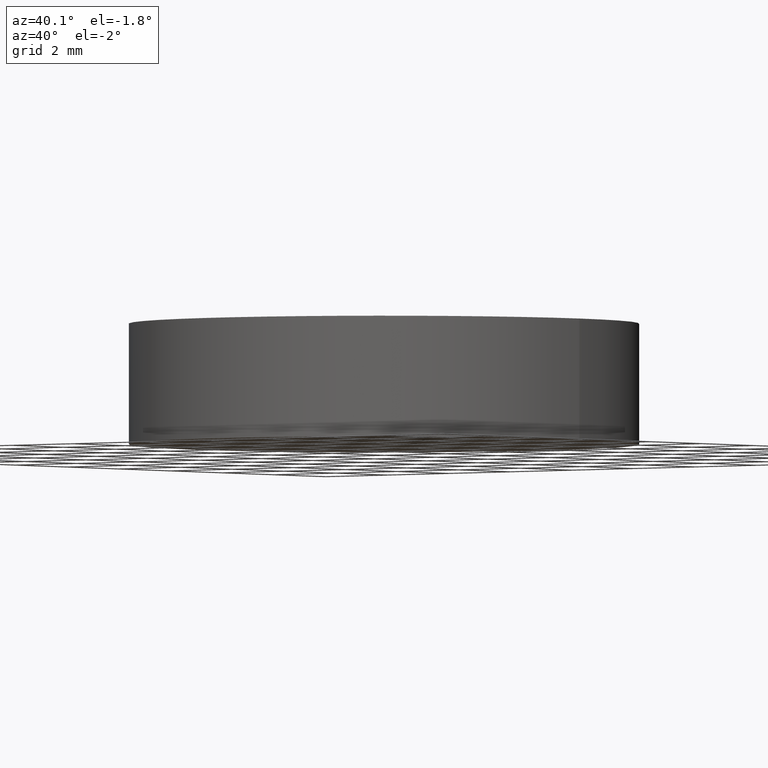
[diagram: clean part render]
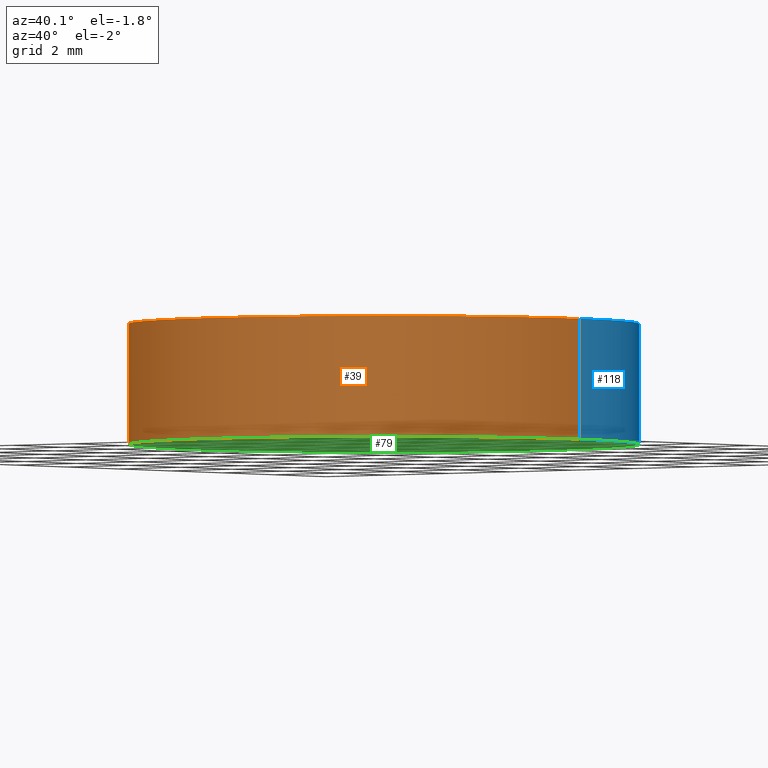
[diagram: same view with three faces highlighted in distinct colors, each labeled with its STEP entity id]
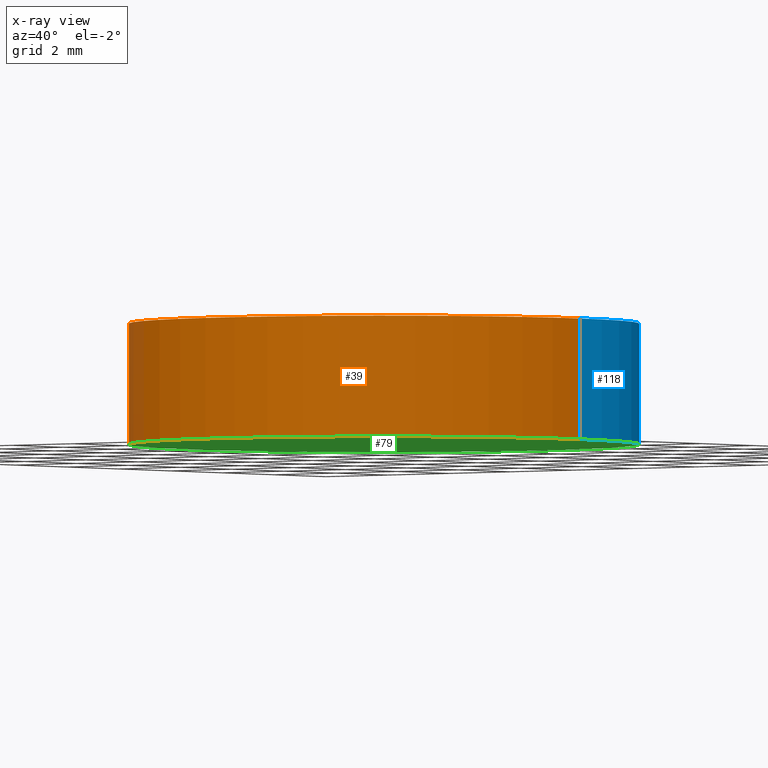
[diagram: x-ray of the same camera — body ghosted, the three highlighted faces saturated]
A machine part, auxiliary view with three faces highlighted in distinct colors.
The next image is the same camera in x-ray (body ghosted, the three faces saturated) — at least one of them is partly hidden behind the body in this view.
Their STEP definitions:

[orange] entity #39 — the highlighted cylindrical surface (partial cylindrical patch) has radius 6.35 mm, axis along (-0, -0, -1).
#1 = ORIENTED_EDGE ( 'NONE', *, *, #22, .T. ) ;
#5 = VECTOR ( 'NONE', #101, 1000.000000000000000 ) ;
#16 = AXIS2_PLACEMENT_3D ( 'NONE', #116, #124, #36 ) ;
#21 = DIRECTION ( 'NONE',  ( 1.000000000000000000, 0.0000000000000000000, 0.0000000000000000000 ) ) ;
#22 = EDGE_CURVE ( 'NONE', #117, #88, #98, .T. ) ;
#26 = CYLINDRICAL_SURFACE ( 'NONE', #16, 6.349999999999999600 ) ;
#27 = EDGE_LOOP ( 'NONE', ( #123, #58, #127, #1 ) ) ;
#30 = CARTESIAN_POINT ( 'NONE',  ( 6.349999999999999600, 7.776507174585692200E-016, 3.000000000000000000 ) ) ;
#31 = VERTEX_POINT ( 'NONE', #134 ) ;
#32 = DIRECTION ( 'NONE',  ( -0.0000000000000000000, -0.0000000000000000000, -1.000000000000000000 ) ) ;
#33 = CARTESIAN_POINT ( 'NONE',  ( -6.349999999999999600, 0.0000000000000000000, 0.0000000000000000000 ) ) ;
#36 = DIRECTION ( 'NONE',  ( -1.000000000000000000, 0.0000000000000000000, 0.0000000000000000000 ) ) ;
#39 = ADVANCED_FACE ( 'NONE', ( #112 ), #26, .T. ) ;
#42 = CARTESIAN_POINT ( 'NONE',  ( -6.349999999999999600, 0.0000000000000000000, 3.000000000000000000 ) ) ;
#43 = DIRECTION ( 'NONE',  ( 1.000000000000000000, 0.0000000000000000000, 0.0000000000000000000 ) ) ;
#46 = DIRECTION ( 'NONE',  ( 0.0000000000000000000, 0.0000000000000000000, 1.000000000000000000 ) ) ;
#58 = ORIENTED_EDGE ( 'NONE', *, *, #99, .F. ) ;
#59 = CARTESIAN_POINT ( 'NONE',  ( 0.0000000000000000000, 0.0000000000000000000, 0.0000000000000000000 ) ) ;
#66 = EDGE_CURVE ( 'NONE', #97, #88, #80, .T. ) ;
#71 = CARTESIAN_POINT ( 'NONE',  ( 6.349999999999999600, 7.776507174585692200E-016, 0.0000000000000000000 ) ) ;
#80 = LINE ( 'NONE', #102, #87 ) ;
#87 = VECTOR ( 'NONE', #32, 1000.000000000000000 ) ;
#88 = VERTEX_POINT ( 'NONE', #71 ) ;
#94 = CARTESIAN_POINT ( 'NONE',  ( 0.0000000000000000000, 0.0000000000000000000, 3.000000000000000000 ) ) ;
#96 = EDGE_CURVE ( 'NONE', #31, #117, #129, .T. ) ;
#97 = VERTEX_POINT ( 'NONE', #30 ) ;
#98 = CIRCLE ( 'NONE', #125, 6.349999999999999600 ) ;
#99 = EDGE_CURVE ( 'NONE', #31, #97, #103, .T. ) ;
#101 = DIRECTION ( 'NONE',  ( -0.0000000000000000000, -0.0000000000000000000, -1.000000000000000000 ) ) ;
#102 = CARTESIAN_POINT ( 'NONE',  ( 6.349999999999999600, 7.776507174585692200E-016, 3.000000000000000000 ) ) ;
#103 = CIRCLE ( 'NONE', #114, 6.349999999999999600 ) ;
#112 = FACE_OUTER_BOUND ( 'NONE', #27, .T. ) ;
#114 = AXIS2_PLACEMENT_3D ( 'NONE', #94, #46, #21 ) ;
#116 = CARTESIAN_POINT ( 'NONE',  ( 0.0000000000000000000, 0.0000000000000000000, 3.000000000000000000 ) ) ;
#117 = VERTEX_POINT ( 'NONE', #33 ) ;
#123 = ORIENTED_EDGE ( 'NONE', *, *, #66, .F. ) ;
#124 = DIRECTION ( 'NONE',  ( -0.0000000000000000000, -0.0000000000000000000, -1.000000000000000000 ) ) ;
#125 = AXIS2_PLACEMENT_3D ( 'NONE', #59, #128, #43 ) ;
#127 = ORIENTED_EDGE ( 'NONE', *, *, #96, .T. ) ;
#128 = DIRECTION ( 'NONE',  ( 0.0000000000000000000, 0.0000000000000000000, 1.000000000000000000 ) ) ;
#129 = LINE ( 'NONE', #42, #5 ) ;
#134 = CARTESIAN_POINT ( 'NONE',  ( -6.349999999999999600, 0.0000000000000000000, 3.000000000000000000 ) ) ;

[blue] entity #118 — the highlighted cylindrical surface (partial cylindrical patch) has radius 6.35 mm, axis along (-0, -0, -1).
#2 = EDGE_CURVE ( 'NONE', #97, #31, #70, .T. ) ;
#5 = VECTOR ( 'NONE', #101, 1000.000000000000000 ) ;
#18 = CIRCLE ( 'NONE', #126, 6.349999999999999600 ) ;
#30 = CARTESIAN_POINT ( 'NONE',  ( 6.349999999999999600, 7.776507174585692200E-016, 3.000000000000000000 ) ) ;
#31 = VERTEX_POINT ( 'NONE', #134 ) ;
#32 = DIRECTION ( 'NONE',  ( -0.0000000000000000000, -0.0000000000000000000, -1.000000000000000000 ) ) ;
#33 = CARTESIAN_POINT ( 'NONE',  ( -6.349999999999999600, 0.0000000000000000000, 0.0000000000000000000 ) ) ;
#38 = ORIENTED_EDGE ( 'NONE', *, *, #120, .T. ) ;
#42 = CARTESIAN_POINT ( 'NONE',  ( -6.349999999999999600, 0.0000000000000000000, 3.000000000000000000 ) ) ;
#47 = DIRECTION ( 'NONE',  ( 0.0000000000000000000, 0.0000000000000000000, 1.000000000000000000 ) ) ;
#54 = DIRECTION ( 'NONE',  ( 0.0000000000000000000, 0.0000000000000000000, 1.000000000000000000 ) ) ;
#62 = CARTESIAN_POINT ( 'NONE',  ( 0.0000000000000000000, 0.0000000000000000000, 3.000000000000000000 ) ) ;
#66 = EDGE_CURVE ( 'NONE', #97, #88, #80, .T. ) ;
#70 = CIRCLE ( 'NONE', #73, 6.349999999999999600 ) ;
#71 = CARTESIAN_POINT ( 'NONE',  ( 6.349999999999999600, 7.776507174585692200E-016, 0.0000000000000000000 ) ) ;
#73 = AXIS2_PLACEMENT_3D ( 'NONE', #84, #47, #130 ) ;
#74 = ORIENTED_EDGE ( 'NONE', *, *, #96, .F. ) ;
#78 = ORIENTED_EDGE ( 'NONE', *, *, #66, .T. ) ;
#80 = LINE ( 'NONE', #102, #87 ) ;
#82 = ORIENTED_EDGE ( 'NONE', *, *, #2, .F. ) ;
#84 = CARTESIAN_POINT ( 'NONE',  ( 0.0000000000000000000, 0.0000000000000000000, 3.000000000000000000 ) ) ;
#87 = VECTOR ( 'NONE', #32, 1000.000000000000000 ) ;
#88 = VERTEX_POINT ( 'NONE', #71 ) ;
#93 = FACE_OUTER_BOUND ( 'NONE', #106, .T. ) ;
#96 = EDGE_CURVE ( 'NONE', #31, #117, #129, .T. ) ;
#97 = VERTEX_POINT ( 'NONE', #30 ) ;
#101 = DIRECTION ( 'NONE',  ( -0.0000000000000000000, -0.0000000000000000000, -1.000000000000000000 ) ) ;
#102 = CARTESIAN_POINT ( 'NONE',  ( 6.349999999999999600, 7.776507174585692200E-016, 3.000000000000000000 ) ) ;
#106 = EDGE_LOOP ( 'NONE', ( #82, #78, #38, #74 ) ) ;
#110 = DIRECTION ( 'NONE',  ( -0.0000000000000000000, -0.0000000000000000000, -1.000000000000000000 ) ) ;
#117 = VERTEX_POINT ( 'NONE', #33 ) ;
#118 = ADVANCED_FACE ( 'NONE', ( #93 ), #119, .T. ) ;
#119 = CYLINDRICAL_SURFACE ( 'NONE', #133, 6.349999999999999600 ) ;
#120 = EDGE_CURVE ( 'NONE', #88, #117, #18, .T. ) ;
#126 = AXIS2_PLACEMENT_3D ( 'NONE', #140, #54, #132 ) ;
#129 = LINE ( 'NONE', #42, #5 ) ;
#130 = DIRECTION ( 'NONE',  ( 1.000000000000000000, 0.0000000000000000000, 0.0000000000000000000 ) ) ;
#132 = DIRECTION ( 'NONE',  ( 1.000000000000000000, 0.0000000000000000000, 0.0000000000000000000 ) ) ;
#133 = AXIS2_PLACEMENT_3D ( 'NONE', #62, #110, #138 ) ;
#134 = CARTESIAN_POINT ( 'NONE',  ( -6.349999999999999600, 0.0000000000000000000, 3.000000000000000000 ) ) ;
#138 = DIRECTION ( 'NONE',  ( -1.000000000000000000, 0.0000000000000000000, 0.0000000000000000000 ) ) ;
#140 = CARTESIAN_POINT ( 'NONE',  ( 0.0000000000000000000, 0.0000000000000000000, 0.0000000000000000000 ) ) ;

[green] entity #79 — the highlighted planar face has unit normal (0, 0, 1).
#3 = FACE_OUTER_BOUND ( 'NONE', #135, .T. ) ;
#18 = CIRCLE ( 'NONE', #126, 6.349999999999999600 ) ;
#19 = PLANE ( 'NONE',  #28 ) ;
#22 = EDGE_CURVE ( 'NONE', #117, #88, #98, .T. ) ;
#28 = AXIS2_PLACEMENT_3D ( 'NONE', #83, #136, #57 ) ;
#33 = CARTESIAN_POINT ( 'NONE',  ( -6.349999999999999600, 0.0000000000000000000, 0.0000000000000000000 ) ) ;
#43 = DIRECTION ( 'NONE',  ( 1.000000000000000000, 0.0000000000000000000, 0.0000000000000000000 ) ) ;
#54 = DIRECTION ( 'NONE',  ( 0.0000000000000000000, 0.0000000000000000000, 1.000000000000000000 ) ) ;
#57 = DIRECTION ( 'NONE',  ( 1.000000000000000000, 0.0000000000000000000, -0.0000000000000000000 ) ) ;
#59 = CARTESIAN_POINT ( 'NONE',  ( 0.0000000000000000000, 0.0000000000000000000, 0.0000000000000000000 ) ) ;
#71 = CARTESIAN_POINT ( 'NONE',  ( 6.349999999999999600, 7.776507174585692200E-016, 0.0000000000000000000 ) ) ;
#79 = ADVANCED_FACE ( 'NONE', ( #3 ), #19, .F. ) ;
#83 = CARTESIAN_POINT ( 'NONE',  ( 0.0000000000000000000, 0.0000000000000000000, 0.0000000000000000000 ) ) ;
#88 = VERTEX_POINT ( 'NONE', #71 ) ;
#90 = ORIENTED_EDGE ( 'NONE', *, *, #22, .F. ) ;
#98 = CIRCLE ( 'NONE', #125, 6.349999999999999600 ) ;
#117 = VERTEX_POINT ( 'NONE', #33 ) ;
#120 = EDGE_CURVE ( 'NONE', #88, #117, #18, .T. ) ;
#125 = AXIS2_PLACEMENT_3D ( 'NONE', #59, #128, #43 ) ;
#126 = AXIS2_PLACEMENT_3D ( 'NONE', #140, #54, #132 ) ;
#128 = DIRECTION ( 'NONE',  ( 0.0000000000000000000, 0.0000000000000000000, 1.000000000000000000 ) ) ;
#131 = ORIENTED_EDGE ( 'NONE', *, *, #120, .F. ) ;
#132 = DIRECTION ( 'NONE',  ( 1.000000000000000000, 0.0000000000000000000, 0.0000000000000000000 ) ) ;
#135 = EDGE_LOOP ( 'NONE', ( #90, #131 ) ) ;
#136 = DIRECTION ( 'NONE',  ( 0.0000000000000000000, 0.0000000000000000000, 1.000000000000000000 ) ) ;
#140 = CARTESIAN_POINT ( 'NONE',  ( 0.0000000000000000000, 0.0000000000000000000, 0.0000000000000000000 ) ) ;